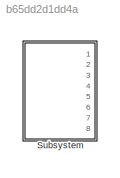
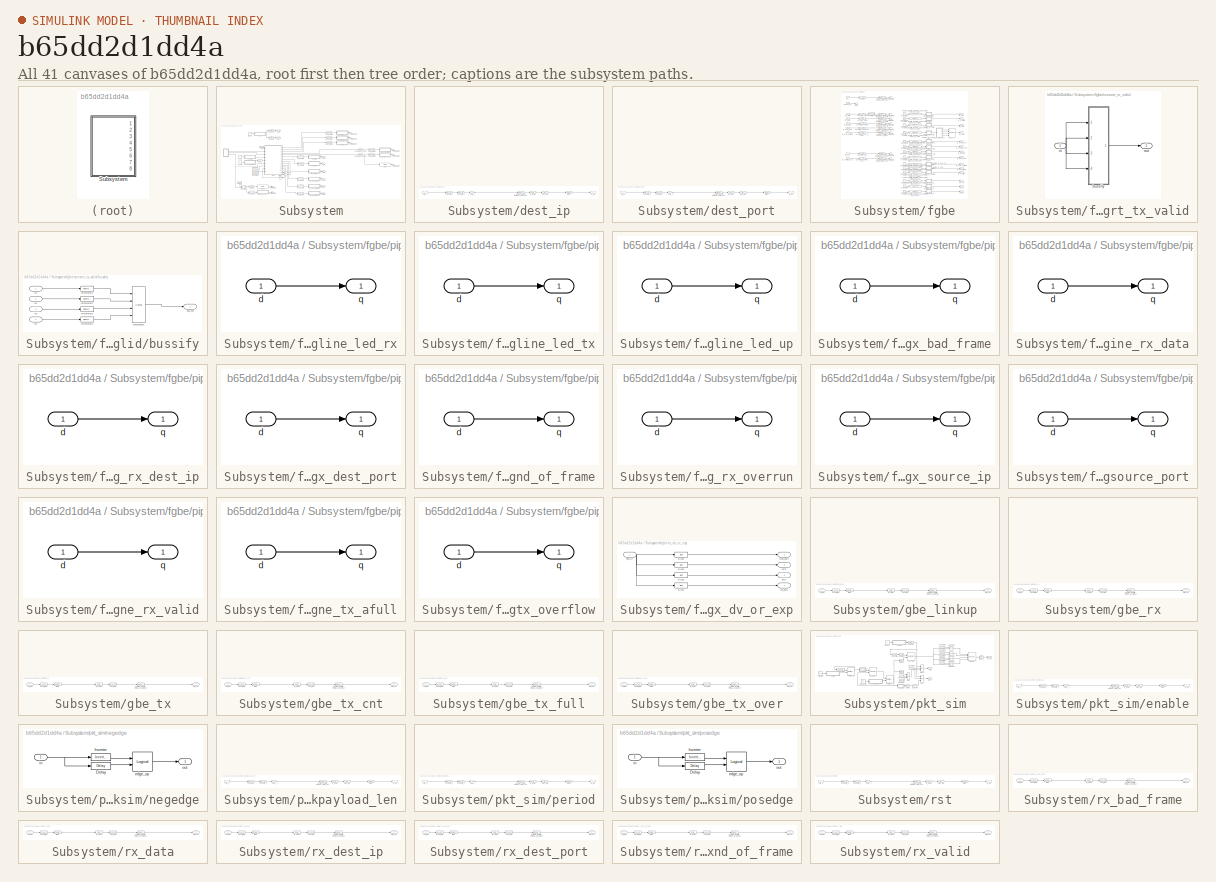
[diagram: thumbnail index - all 41 canvases of the model, root first then tree order]
MODEL slx_b65dd2d1dd4a
KIND model
CONFIG AbsTol = auto
CONFIG EnableMultiTasking = off
CONFIG FixedStep = auto
CONFIG MaxStep = auto
CONFIG MinStep = auto
CONFIG RelTol = 1e-3
CONFIG SampleTimeConstraint = Unconstrained
CONFIG Solver = VariableStepDiscrete
CONFIG SolverName = VariableStepDiscrete
CONFIG StartTime = 0.0
CONFIG StopTime = 50000
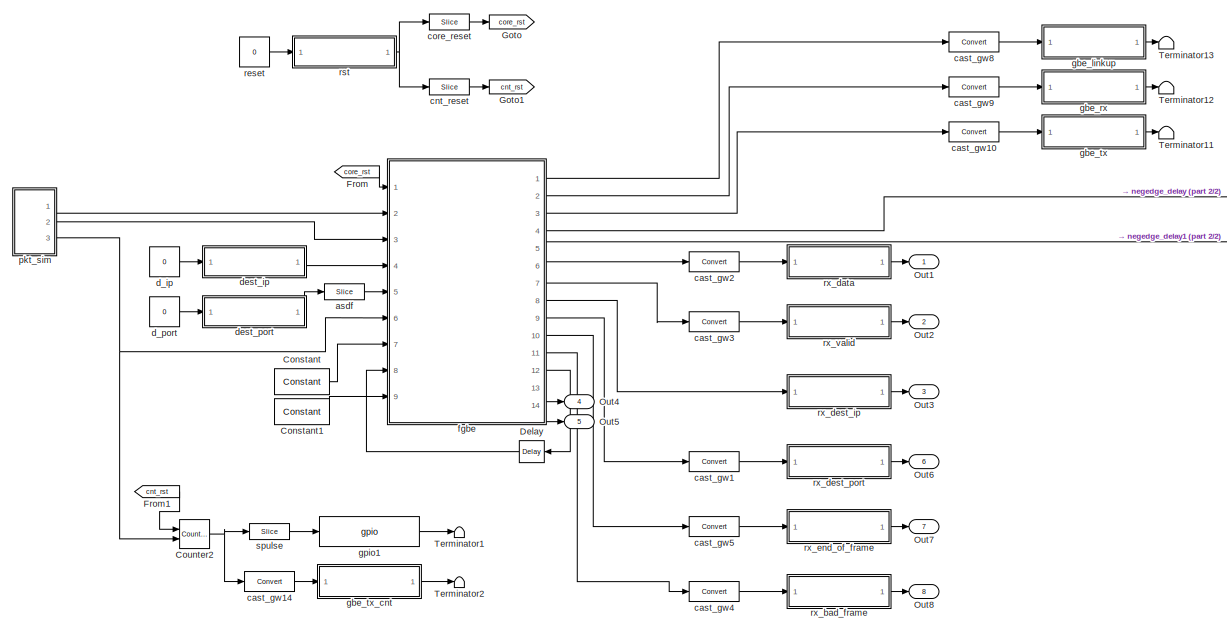
[diagram: Subsystem - part 1/2, most of the canvas]
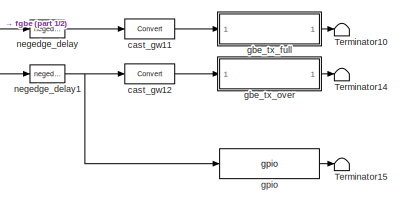
[diagram: Subsystem - part 2/2, middle right region]
BLOCK [SubSystem] Subsystem
  Ports = [0, 8]
  RequestExecContextInheritance = off
BLOCK [Reference] Subsystem/Constant  REF=xbsIndex_r4/Constant
  Ports = [0, 1]
  SourceBlock = xbsIndex_r4/Constant
  SourceType = Xilinx Constant Block Block
BLOCK [Reference] Subsystem/Constant1  REF=xbsIndex_r4/Constant
  Ports = [0, 1]
  SourceBlock = xbsIndex_r4/Constant
  SourceType = Xilinx Constant Block Block
BLOCK [Reference] Subsystem/Counter2  REF=xbsIndex_r4/Counter
  Ports = [2, 1]
  SourceBlock = xbsIndex_r4/Counter
  SourceType = Xilinx Counter Block
BLOCK [Reference] Subsystem/Delay  REF=xbsIndex_r4/Delay
  Ports = [1, 1]
  SourceBlock = xbsIndex_r4/Delay
  SourceType = Xilinx Delay Block
BLOCK [From] Subsystem/From
  GotoTag = core_rst
BLOCK [From] Subsystem/From1
  GotoTag = cnt_rst
BLOCK [Goto] Subsystem/Goto
  GotoTag = core_rst
BLOCK [Goto] Subsystem/Goto1
  GotoTag = cnt_rst
BLOCK [Outport] Subsystem/Out1
  IconDisplay = Port number
BLOCK [Outport] Subsystem/Out2
  IconDisplay = Port number
  Port = 2
BLOCK [Outport] Subsystem/Out3
  IconDisplay = Port number
  Port = 3
BLOCK [Outport] Subsystem/Out4
  IconDisplay = Port number
  Port = 4
BLOCK [Outport] Subsystem/Out5
  IconDisplay = Port number
  Port = 5
BLOCK [Outport] Subsystem/Out6
  IconDisplay = Port number
  Port = 6
BLOCK [Outport] Subsystem/Out7
  IconDisplay = Port number
  Port = 7
BLOCK [Outport] Subsystem/Out8
  IconDisplay = Port number
  Port = 8
BLOCK [Terminator] Subsystem/Terminator1
BLOCK [Terminator] Subsystem/Terminator10
BLOCK [Terminator] Subsystem/Terminator11
BLOCK [Terminator] Subsystem/Terminator12
BLOCK [Terminator] Subsystem/Terminator13
BLOCK [Terminator] Subsystem/Terminator14
BLOCK [Terminator] Subsystem/Terminator15
BLOCK [Terminator] Subsystem/Terminator2
BLOCK [Reference] Subsystem/asdf  REF=xbsIndex_r4/Slice
  Ports = [1, 1]
  SourceBlock = xbsIndex_r4/Slice
  SourceType = Xilinx Bit Slice Extractor Block
BLOCK [Reference] Subsystem/cast_gw1  REF=xbsIndex_r4/Convert
  Ports = [1, 1]
  SourceBlock = xbsIndex_r4/Convert
  SourceType = Xilinx Type Converter Block
BLOCK [Reference] Subsystem/cast_gw10  REF=xbsIndex_r4/Convert
  Ports = [1, 1]
  SourceBlock = xbsIndex_r4/Convert
  SourceType = Xilinx Type Converter Block
BLOCK [Reference] Subsystem/cast_gw11  REF=xbsIndex_r4/Convert
  Ports = [1, 1]
  SourceBlock = xbsIndex_r4/Convert
  SourceType = Xilinx Type Converter Block
BLOCK [Reference] Subsystem/cast_gw12  REF=xbsIndex_r4/Convert
  Ports = [1, 1]
  SourceBlock = xbsIndex_r4/Convert
  SourceType = Xilinx Type Converter Block
BLOCK [Reference] Subsystem/cast_gw14  REF=xbsIndex_r4/Convert
  Ports = [1, 1]
  SourceBlock = xbsIndex_r4/Convert
  SourceType = Xilinx Type Converter Block
BLOCK [Reference] Subsystem/cast_gw2  REF=xbsIndex_r4/Convert
  Ports = [1, 1]
  SourceBlock = xbsIndex_r4/Convert
  SourceType = Xilinx Type Converter Block
BLOCK [Reference] Subsystem/cast_gw3  REF=xbsIndex_r4/Convert
  Ports = [1, 1]
  SourceBlock = xbsIndex_r4/Convert
  SourceType = Xilinx Type Converter Block
BLOCK [Reference] Subsystem/cast_gw4  REF=xbsIndex_r4/Convert
  Ports = [1, 1]
  SourceBlock = xbsIndex_r4/Convert
  SourceType = Xilinx Type Converter Block
BLOCK [Reference] Subsystem/cast_gw5  REF=xbsIndex_r4/Convert
  Ports = [1, 1]
  SourceBlock = xbsIndex_r4/Convert
  SourceType = Xilinx Type Converter Block
BLOCK [Reference] Subsystem/cast_gw8  REF=xbsIndex_r4/Convert
  Ports = [1, 1]
  SourceBlock = xbsIndex_r4/Convert
  SourceType = Xilinx Type Converter Block
BLOCK [Reference] Subsystem/cast_gw9  REF=xbsIndex_r4/Convert
  Ports = [1, 1]
  SourceBlock = xbsIndex_r4/Convert
  SourceType = Xilinx Type Converter Block
BLOCK [Reference] Subsystem/cnt_reset  REF=xbsIndex_r4/Slice
  Ports = [1, 1]
  SourceBlock = xbsIndex_r4/Slice
  SourceType = Xilinx Bit Slice Extractor Block
BLOCK [Reference] Subsystem/core_reset  REF=xbsIndex_r4/Slice
  Ports = [1, 1]
  SourceBlock = xbsIndex_r4/Slice
  SourceType = Xilinx Bit Slice Extractor Block
BLOCK [Constant] Subsystem/d_ip
  Value = 0
BLOCK [Constant] Subsystem/d_port
  Value = 0
BLOCK [SubSystem] Subsystem/dest_ip
  AncestorBlock = xps_library/Memory/software_register
  AttributesFormatString = 1input:uf32.0 = 32 bits
  Ports = [1, 1]
  RequestExecContextInheritance = off
  Tag = xps:sw_reg
BLOCK [DataTypeConversion] Subsystem/dest_ip/convert1_1
  LockScale = on
  OutDataTypeStr = fixdt('ufix32_En0')
  RndMeth = Floor
  SaturateOnIntegerOverflow = off
BLOCK [DataTypeConversion] Subsystem/dest_ip/convert2_1
  ConvertRealWorld = Stored Integer (SI)
  LockScale = on
  OutDataTypeStr = fixdt('ufix32_En0')
  RndMeth = Floor
  SaturateOnIntegerOverflow = off
BLOCK [Gain] Subsystem/dest_ip/gain_1
  OutDataTypeStr = Inherit: Inherit via internal rule
  ParamDataTypeStr = Inherit: Inherit via internal rule
  SaturateOnIntegerOverflow = off
BLOCK [Outport] Subsystem/dest_ip/in_reg
  IconDisplay = Port number
BLOCK [Reference] Subsystem/dest_ip/io_delay  REF=xbsIndex_r4/Delay
  Ports = [1, 1]
  SourceBlock = xbsIndex_r4/Delay
  SourceType = Xilinx Delay Block
BLOCK [Reference] Subsystem/dest_ip/reint1  REF=xbsIndex_r4/Reinterpret
  Ports = [1, 1]
  SourceBlock = xbsIndex_r4/Reinterpret
  SourceType = Xilinx Type Reinterpreter Block
BLOCK [Inport] Subsystem/dest_ip/sim_1
  IconDisplay = Port number
BLOCK [Reference] Subsystem/dest_ip/skarab_tut_intro_template_Subsystem_dest_ip_user_data_out  REF=xbsIndex_r4/Gateway In
  Ports = [1, 1]
  SourceBlock = xbsIndex_r4/Gateway In
  SourceType = Xilinx Gateway In Block
BLOCK [Reference] Subsystem/dest_ip/slice_reg  REF=xbsIndex_r4/Slice
  Ports = [1, 1]
  SourceBlock = xbsIndex_r4/Slice
  SourceType = Xilinx Bit Slice Extractor Block
BLOCK [SubSystem] Subsystem/dest_port
  AncestorBlock = xps_library/Memory/software_register
  AttributesFormatString = 1input:uf32.0 = 32 bits
  Ports = [1, 1]
  RequestExecContextInheritance = off
  Tag = xps:sw_reg
BLOCK [DataTypeConversion] Subsystem/dest_port/convert1_1
  LockScale = on
  OutDataTypeStr = fixdt('ufix32_En0')
  RndMeth = Floor
  SaturateOnIntegerOverflow = off
BLOCK [DataTypeConversion] Subsystem/dest_port/convert2_1
  ConvertRealWorld = Stored Integer (SI)
  LockScale = on
  OutDataTypeStr = fixdt('ufix32_En0')
  RndMeth = Floor
  SaturateOnIntegerOverflow = off
BLOCK [Gain] Subsystem/dest_port/gain_1
  OutDataTypeStr = Inherit: Inherit via internal rule
  ParamDataTypeStr = Inherit: Inherit via internal rule
  SaturateOnIntegerOverflow = off
BLOCK [Outport] Subsystem/dest_port/in_reg
  IconDisplay = Port number
BLOCK [Reference] Subsystem/dest_port/io_delay  REF=xbsIndex_r4/Delay
  Ports = [1, 1]
  SourceBlock = xbsIndex_r4/Delay
  SourceType = Xilinx Delay Block
BLOCK [Reference] Subsystem/dest_port/reint1  REF=xbsIndex_r4/Reinterpret
  Ports = [1, 1]
  SourceBlock = xbsIndex_r4/Reinterpret
  SourceType = Xilinx Type Reinterpreter Block
BLOCK [Inport] Subsystem/dest_port/sim_1
  IconDisplay = Port number
BLOCK [Reference] Subsystem/dest_port/skarab_tut_intro_template_Subsystem_dest_port_user_data_out  REF=xbsIndex_r4/Gateway In
  Ports = [1, 1]
  SourceBlock = xbsIndex_r4/Gateway In
  SourceType = Xilinx Gateway In Block
BLOCK [Reference] Subsystem/dest_port/slice_reg  REF=xbsIndex_r4/Slice
  Ports = [1, 1]
  SourceBlock = xbsIndex_r4/Slice
  SourceType = Xilinx Bit Slice Extractor Block
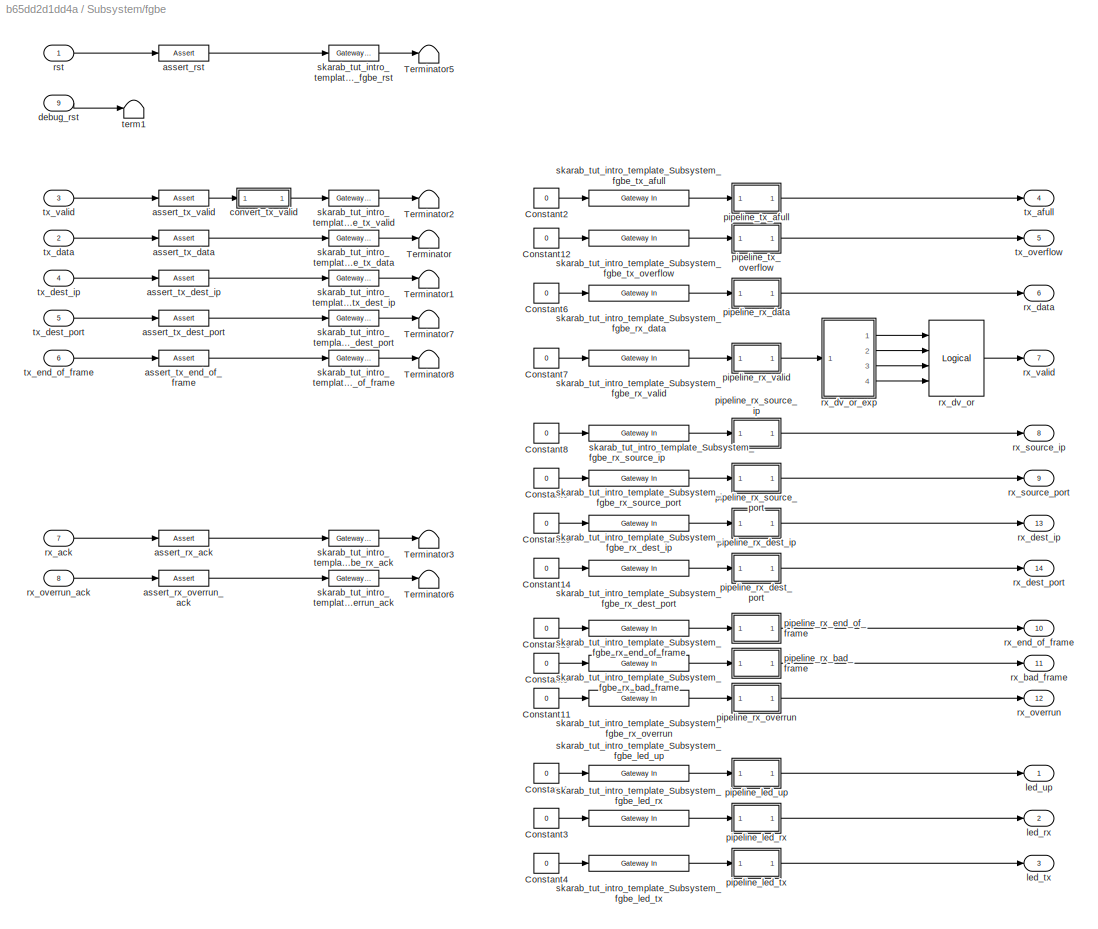
BLOCK [SubSystem] Subsystem/fgbe
  AncestorBlock = xps_library/IO/forty_gbe
  AttributesFormatString = incoming_latency=0
  Ports = [9, 14]
  RequestExecContextInheritance = off
  Tag = xps:forty_gbe
BLOCK [Constant] Subsystem/fgbe/Constant1
  Value = 0
BLOCK [Constant] Subsystem/fgbe/Constant10
  Value = 0
BLOCK [Constant] Subsystem/fgbe/Constant11
  Value = 0
BLOCK [Constant] Subsystem/fgbe/Constant12
  Value = 0
BLOCK [Constant] Subsystem/fgbe/Constant13
  Value = 0
BLOCK [Constant] Subsystem/fgbe/Constant14
  Value = 0
BLOCK [Constant] Subsystem/fgbe/Constant2
  Value = 0
BLOCK [Constant] Subsystem/fgbe/Constant3
  Value = 0
BLOCK [Constant] Subsystem/fgbe/Constant4
  Value = 0
BLOCK [Constant] Subsystem/fgbe/Constant5
  Value = 0
BLOCK [Constant] Subsystem/fgbe/Constant6
  Value = 0
BLOCK [Constant] Subsystem/fgbe/Constant7
  Value = 0
BLOCK [Constant] Subsystem/fgbe/Constant8
  Value = 0
BLOCK [Constant] Subsystem/fgbe/Constant9
  Value = 0
BLOCK [Terminator] Subsystem/fgbe/Terminator
BLOCK [Terminator] Subsystem/fgbe/Terminator1
BLOCK [Terminator] Subsystem/fgbe/Terminator2
BLOCK [Terminator] Subsystem/fgbe/Terminator3
BLOCK [Terminator] Subsystem/fgbe/Terminator5
BLOCK [Terminator] Subsystem/fgbe/Terminator6
BLOCK [Terminator] Subsystem/fgbe/Terminator7
BLOCK [Terminator] Subsystem/fgbe/Terminator8
BLOCK [Reference] Subsystem/fgbe/assert_rst  REF=xbsIndex_r4/Assert
  Ports = [1, 1]
  SourceBlock = xbsIndex_r4/Assert
  SourceType = Xilinx Assert Block
BLOCK [Reference] Subsystem/fgbe/assert_rx_ack  REF=xbsIndex_r4/Assert
  Ports = [1, 1]
  SourceBlock = xbsIndex_r4/Assert
  SourceType = Xilinx Assert Block
BLOCK [Reference] Subsystem/fgbe/assert_rx_overrun_ack  REF=xbsIndex_r4/Assert
  Ports = [1, 1]
  SourceBlock = xbsIndex_r4/Assert
  SourceType = Xilinx Assert Block
BLOCK [Reference] Subsystem/fgbe/assert_tx_data  REF=xbsIndex_r4/Assert
  Ports = [1, 1]
  SourceBlock = xbsIndex_r4/Assert
  SourceType = Xilinx Assert Block
BLOCK [Reference] Subsystem/fgbe/assert_tx_dest_ip  REF=xbsIndex_r4/Assert
  Ports = [1, 1]
  SourceBlock = xbsIndex_r4/Assert
  SourceType = Xilinx Assert Block
BLOCK [Reference] Subsystem/fgbe/assert_tx_dest_port  REF=xbsIndex_r4/Assert
  Ports = [1, 1]
  SourceBlock = xbsIndex_r4/Assert
  SourceType = Xilinx Assert Block
BLOCK [Reference] Subsystem/fgbe/assert_tx_end_of_frame  REF=xbsIndex_r4/Assert
  Ports = [1, 1]
  SourceBlock = xbsIndex_r4/Assert
  SourceType = Xilinx Assert Block
BLOCK [Reference] Subsystem/fgbe/assert_tx_valid  REF=xbsIndex_r4/Assert
  Ports = [1, 1]
  SourceBlock = xbsIndex_r4/Assert
  SourceType = Xilinx Assert Block
BLOCK [SubSystem] Subsystem/fgbe/convert_tx_valid
  AncestorBlock = casper_library_bus/bus_replicate
  Ports = [1, 1]
  RequestExecContextInheritance = off
  UserDataPersistent = on
BLOCK [SubSystem] Subsystem/fgbe/convert_tx_valid/bussify
  AncestorBlock = casper_library_flow_control/bus_create
  Ports = [4, 1]
  RequestExecContextInheritance = off
  UserDataPersistent = on
BLOCK [Outport] Subsystem/fgbe/convert_tx_valid/bussify/bus_out
  IconDisplay = Port number
BLOCK [Reference] Subsystem/fgbe/convert_tx_valid/bussify/concatenate  REF=xbsIndex_r4/Concat
  Ports = [4, 1]
  SourceBlock = xbsIndex_r4/Concat
  SourceType = Xilinx Bus Concatenator Block
BLOCK [Inport] Subsystem/fgbe/convert_tx_valid/bussify/in1
  IconDisplay = Port number
BLOCK [Inport] Subsystem/fgbe/convert_tx_valid/bussify/in2
  IconDisplay = Port number
  Port = 2
BLOCK [Inport] Subsystem/fgbe/convert_tx_valid/bussify/in3
  IconDisplay = Port number
  Port = 3
BLOCK [Inport] Subsystem/fgbe/convert_tx_valid/bussify/in4
  IconDisplay = Port number
  Port = 4
BLOCK [Reference] Subsystem/fgbe/convert_tx_valid/bussify/reinterpret1  REF=xbsIndex_r4/Reinterpret
  Ports = [1, 1]
  SourceBlock = xbsIndex_r4/Reinterpret
  SourceType = Xilinx Type Reinterpreter Block
BLOCK [Reference] Subsystem/fgbe/convert_tx_valid/bussify/reinterpret2  REF=xbsIndex_r4/Reinterpret
  Ports = [1, 1]
  SourceBlock = xbsIndex_r4/Reinterpret
  SourceType = Xilinx Type Reinterpreter Block
BLOCK [Reference] Subsystem/fgbe/convert_tx_valid/bussify/reinterpret3  REF=xbsIndex_r4/Reinterpret
  Ports = [1, 1]
  SourceBlock = xbsIndex_r4/Reinterpret
  SourceType = Xilinx Type Reinterpreter Block
BLOCK [Reference] Subsystem/fgbe/convert_tx_valid/bussify/reinterpret4  REF=xbsIndex_r4/Reinterpret
  Ports = [1, 1]
  SourceBlock = xbsIndex_r4/Reinterpret
  SourceType = Xilinx Type Reinterpreter Block
BLOCK [Inport] Subsystem/fgbe/convert_tx_valid/in
  IconDisplay = Port number
BLOCK [Outport] Subsystem/fgbe/convert_tx_valid/out
  IconDisplay = Port number
BLOCK [Inport] Subsystem/fgbe/debug_rst
  IconDisplay = Port number
  Port = 9
BLOCK [Outport] Subsystem/fgbe/led_rx
  IconDisplay = Port number
  Port = 2
BLOCK [Outport] Subsystem/fgbe/led_tx
  IconDisplay = Port number
  Port = 3
BLOCK [Outport] Subsystem/fgbe/led_up
  IconDisplay = Port number
BLOCK [SubSystem] Subsystem/fgbe/pipeline_led_rx
  AncestorBlock = casper_library_delays/pipeline
  AttributesFormatString = Latency = %<latency>
  Ports = [1, 1]
  RequestExecContextInheritance = off
  UserDataPersistent = on
BLOCK [Inport] Subsystem/fgbe/pipeline_led_rx/d
  IconDisplay = Port number
BLOCK [Outport] Subsystem/fgbe/pipeline_led_rx/q
  IconDisplay = Port number
BLOCK [SubSystem] Subsystem/fgbe/pipeline_led_tx
  AncestorBlock = casper_library_delays/pipeline
  AttributesFormatString = Latency = %<latency>
  Ports = [1, 1]
  RequestExecContextInheritance = off
  UserDataPersistent = on
BLOCK [Inport] Subsystem/fgbe/pipeline_led_tx/d
  IconDisplay = Port number
BLOCK [Outport] Subsystem/fgbe/pipeline_led_tx/q
  IconDisplay = Port number
BLOCK [SubSystem] Subsystem/fgbe/pipeline_led_up
  AncestorBlock = casper_library_delays/pipeline
  AttributesFormatString = Latency = %<latency>
  Ports = [1, 1]
  RequestExecContextInheritance = off
  UserDataPersistent = on
BLOCK [Inport] Subsystem/fgbe/pipeline_led_up/d
  IconDisplay = Port number
BLOCK [Outport] Subsystem/fgbe/pipeline_led_up/q
  IconDisplay = Port number
BLOCK [SubSystem] Subsystem/fgbe/pipeline_rx_bad_frame
  AncestorBlock = casper_library_delays/pipeline
  AttributesFormatString = Latency = %<latency>
  Ports = [1, 1]
  RequestExecContextInheritance = off
  UserDataPersistent = on
BLOCK [Inport] Subsystem/fgbe/pipeline_rx_bad_frame/d
  IconDisplay = Port number
BLOCK [Outport] Subsystem/fgbe/pipeline_rx_bad_frame/q
  IconDisplay = Port number
BLOCK [SubSystem] Subsystem/fgbe/pipeline_rx_data
  AncestorBlock = casper_library_delays/pipeline
  AttributesFormatString = Latency = %<latency>
  Ports = [1, 1]
  RequestExecContextInheritance = off
  UserDataPersistent = on
BLOCK [Inport] Subsystem/fgbe/pipeline_rx_data/d
  IconDisplay = Port number
BLOCK [Outport] Subsystem/fgbe/pipeline_rx_data/q
  IconDisplay = Port number
BLOCK [SubSystem] Subsystem/fgbe/pipeline_rx_dest_ip
  AncestorBlock = casper_library_delays/pipeline
  AttributesFormatString = Latency = %<latency>
  Ports = [1, 1]
  RequestExecContextInheritance = off
  UserDataPersistent = on
BLOCK [Inport] Subsystem/fgbe/pipeline_rx_dest_ip/d
  IconDisplay = Port number
BLOCK [Outport] Subsystem/fgbe/pipeline_rx_dest_ip/q
  IconDisplay = Port number
BLOCK [SubSystem] Subsystem/fgbe/pipeline_rx_dest_port
  AncestorBlock = casper_library_delays/pipeline
  AttributesFormatString = Latency = %<latency>
  Ports = [1, 1]
  RequestExecContextInheritance = off
  UserDataPersistent = on
BLOCK [Inport] Subsystem/fgbe/pipeline_rx_dest_port/d
  IconDisplay = Port number
BLOCK [Outport] Subsystem/fgbe/pipeline_rx_dest_port/q
  IconDisplay = Port number
BLOCK [SubSystem] Subsystem/fgbe/pipeline_rx_end_of_frame
  AncestorBlock = casper_library_delays/pipeline
  AttributesFormatString = Latency = %<latency>
  Ports = [1, 1]
  RequestExecContextInheritance = off
  UserDataPersistent = on
BLOCK [Inport] Subsystem/fgbe/pipeline_rx_end_of_frame/d
  IconDisplay = Port number
BLOCK [Outport] Subsystem/fgbe/pipeline_rx_end_of_frame/q
  IconDisplay = Port number
BLOCK [SubSystem] Subsystem/fgbe/pipeline_rx_overrun
  AncestorBlock = casper_library_delays/pipeline
  AttributesFormatString = Latency = %<latency>
  Ports = [1, 1]
  RequestExecContextInheritance = off
  UserDataPersistent = on
BLOCK [Inport] Subsystem/fgbe/pipeline_rx_overrun/d
  IconDisplay = Port number
BLOCK [Outport] Subsystem/fgbe/pipeline_rx_overrun/q
  IconDisplay = Port number
BLOCK [SubSystem] Subsystem/fgbe/pipeline_rx_source_ip
  AncestorBlock = casper_library_delays/pipeline
  AttributesFormatString = Latency = %<latency>
  Ports = [1, 1]
  RequestExecContextInheritance = off
  UserDataPersistent = on
BLOCK [Inport] Subsystem/fgbe/pipeline_rx_source_ip/d
  IconDisplay = Port number
BLOCK [Outport] Subsystem/fgbe/pipeline_rx_source_ip/q
  IconDisplay = Port number
BLOCK [SubSystem] Subsystem/fgbe/pipeline_rx_source_port
  AncestorBlock = casper_library_delays/pipeline
  AttributesFormatString = Latency = %<latency>
  Ports = [1, 1]
  RequestExecContextInheritance = off
  UserDataPersistent = on
BLOCK [Inport] Subsystem/fgbe/pipeline_rx_source_port/d
  IconDisplay = Port number
BLOCK [Outport] Subsystem/fgbe/pipeline_rx_source_port/q
  IconDisplay = Port number
BLOCK [SubSystem] Subsystem/fgbe/pipeline_rx_valid
  AncestorBlock = casper_library_delays/pipeline
  AttributesFormatString = Latency = %<latency>
  Ports = [1, 1]
  RequestExecContextInheritance = off
  UserDataPersistent = on
BLOCK [Inport] Subsystem/fgbe/pipeline_rx_valid/d
  IconDisplay = Port number
BLOCK [Outport] Subsystem/fgbe/pipeline_rx_valid/q
  IconDisplay = Port number
BLOCK [SubSystem] Subsystem/fgbe/pipeline_tx_afull
  AncestorBlock = casper_library_delays/pipeline
  AttributesFormatString = Latency = %<latency>
  Ports = [1, 1]
  RequestExecContextInheritance = off
  UserDataPersistent = on
BLOCK [Inport] Subsystem/fgbe/pipeline_tx_afull/d
  IconDisplay = Port number
BLOCK [Outport] Subsystem/fgbe/pipeline_tx_afull/q
  IconDisplay = Port number
BLOCK [SubSystem] Subsystem/fgbe/pipeline_tx_overflow
  AncestorBlock = casper_library_delays/pipeline
  AttributesFormatString = Latency = %<latency>
  Ports = [1, 1]
  RequestExecContextInheritance = off
  UserDataPersistent = on
BLOCK [Inport] Subsystem/fgbe/pipeline_tx_overflow/d
  IconDisplay = Port number
BLOCK [Outport] Subsystem/fgbe/pipeline_tx_overflow/q
  IconDisplay = Port number
BLOCK [Inport] Subsystem/fgbe/rst
  IconDisplay = Port number
BLOCK [Inport] Subsystem/fgbe/rx_ack
  IconDisplay = Port number
  Port = 7
BLOCK [Outport] Subsystem/fgbe/rx_bad_frame
  IconDisplay = Port number
  Port = 11
BLOCK [Outport] Subsystem/fgbe/rx_data
  IconDisplay = Port number
  Port = 6
BLOCK [Outport] Subsystem/fgbe/rx_dest_ip
  IconDisplay = Port number
  Port = 13
BLOCK [Outport] Subsystem/fgbe/rx_dest_port
  IconDisplay = Port number
  Port = 14
BLOCK [Reference] Subsystem/fgbe/rx_dv_or  REF=xbsIndex_r4/Logical
  Ports = [4, 1]
  SourceBlock = xbsIndex_r4/Logical
  SourceType = Xilinx Logical Block Block
BLOCK [SubSystem] Subsystem/fgbe/rx_dv_or_exp
  AncestorBlock = casper_library_flow_control/bus_expand
  AttributesFormatString = 4 outputs
  Ports = [1, 4]
  RequestExecContextInheritance = off
  UserDataPersistent = on
BLOCK [Inport] Subsystem/fgbe/rx_dv_or_exp/bus_in
  IconDisplay = Port number
BLOCK [Outport] Subsystem/fgbe/rx_dv_or_exp/lsb_out1
  IconDisplay = Port number
  Port = 4
BLOCK [Outport] Subsystem/fgbe/rx_dv_or_exp/msb_out4
  IconDisplay = Port number
BLOCK [Outport] Subsystem/fgbe/rx_dv_or_exp/out2
  IconDisplay = Port number
  Port = 3
BLOCK [Outport] Subsystem/fgbe/rx_dv_or_exp/out3
  IconDisplay = Port number
  Port = 2
BLOCK [Reference] Subsystem/fgbe/rx_dv_or_exp/slice1  REF=xbsIndex_r4/Slice
  Ports = [1, 1]
  SourceBlock = xbsIndex_r4/Slice
  SourceType = Xilinx Bit Slice Extractor Block
BLOCK [Reference] Subsystem/fgbe/rx_dv_or_exp/slice2  REF=xbsIndex_r4/Slice
  Ports = [1, 1]
  SourceBlock = xbsIndex_r4/Slice
  SourceType = Xilinx Bit Slice Extractor Block
BLOCK [Reference] Subsystem/fgbe/rx_dv_or_exp/slice3  REF=xbsIndex_r4/Slice
  Ports = [1, 1]
  SourceBlock = xbsIndex_r4/Slice
  SourceType = Xilinx Bit Slice Extractor Block
BLOCK [Reference] Subsystem/fgbe/rx_dv_or_exp/slice4  REF=xbsIndex_r4/Slice
  Ports = [1, 1]
  SourceBlock = xbsIndex_r4/Slice
  SourceType = Xilinx Bit Slice Extractor Block
BLOCK [Outport] Subsystem/fgbe/rx_end_of_frame
  IconDisplay = Port number
  Port = 10
BLOCK [Outport] Subsystem/fgbe/rx_overrun
  IconDisplay = Port number
  Port = 12
BLOCK [Inport] Subsystem/fgbe/rx_overrun_ack
  IconDisplay = Port number
  Port = 8
BLOCK [Outport] Subsystem/fgbe/rx_source_ip
  IconDisplay = Port number
  Port = 8
BLOCK [Outport] Subsystem/fgbe/rx_source_port
  IconDisplay = Port number
  Port = 9
BLOCK [Outport] Subsystem/fgbe/rx_valid
  IconDisplay = Port number
  Port = 7
BLOCK [Reference] Subsystem/fgbe/skarab_tut_intro_template_Subsystem_fgbe_led_rx  REF=xbsIndex_r4/Gateway In
  Ports = [1, 1]
  SourceBlock = xbsIndex_r4/Gateway In
  SourceType = Xilinx Gateway In Block
BLOCK [Reference] Subsystem/fgbe/skarab_tut_intro_template_Subsystem_fgbe_led_tx  REF=xbsIndex_r4/Gateway In
  Ports = [1, 1]
  SourceBlock = xbsIndex_r4/Gateway In
  SourceType = Xilinx Gateway In Block
BLOCK [Reference] Subsystem/fgbe/skarab_tut_intro_template_Subsystem_fgbe_led_up  REF=xbsIndex_r4/Gateway In
  Ports = [1, 1]
  SourceBlock = xbsIndex_r4/Gateway In
  SourceType = Xilinx Gateway In Block
BLOCK [Reference] Subsystem/fgbe/skarab_tut_intro_template_Subsystem_fgbe_rst  REF=xbsIndex_r4/Gateway Out
  Ports = [1, 1]
  SourceBlock = xbsIndex_r4/Gateway Out
  SourceType = Xilinx Gateway Out Block
BLOCK [Reference] Subsystem/fgbe/skarab_tut_intro_template_Subsystem_fgbe_rx_ack  REF=xbsIndex_r4/Gateway Out
  Ports = [1, 1]
  SourceBlock = xbsIndex_r4/Gateway Out
  SourceType = Xilinx Gateway Out Block
BLOCK [Reference] Subsystem/fgbe/skarab_tut_intro_template_Subsystem_fgbe_rx_bad_frame  REF=xbsIndex_r4/Gateway In
  Ports = [1, 1]
  SourceBlock = xbsIndex_r4/Gateway In
  SourceType = Xilinx Gateway In Block
BLOCK [Reference] Subsystem/fgbe/skarab_tut_intro_template_Subsystem_fgbe_rx_data  REF=xbsIndex_r4/Gateway In
  Ports = [1, 1]
  SourceBlock = xbsIndex_r4/Gateway In
  SourceType = Xilinx Gateway In Block
BLOCK [Reference] Subsystem/fgbe/skarab_tut_intro_template_Subsystem_fgbe_rx_dest_ip  REF=xbsIndex_r4/Gateway In
  Ports = [1, 1]
  SourceBlock = xbsIndex_r4/Gateway In
  SourceType = Xilinx Gateway In Block
BLOCK [Reference] Subsystem/fgbe/skarab_tut_intro_template_Subsystem_fgbe_rx_dest_port  REF=xbsIndex_r4/Gateway In
  Ports = [1, 1]
  SourceBlock = xbsIndex_r4/Gateway In
  SourceType = Xilinx Gateway In Block
BLOCK [Reference] Subsystem/fgbe/skarab_tut_intro_template_Subsystem_fgbe_rx_end_of_frame  REF=xbsIndex_r4/Gateway In
  Ports = [1, 1]
  SourceBlock = xbsIndex_r4/Gateway In
  SourceType = Xilinx Gateway In Block
BLOCK [Reference] Subsystem/fgbe/skarab_tut_intro_template_Subsystem_fgbe_rx_overrun  REF=xbsIndex_r4/Gateway In
  Ports = [1, 1]
  SourceBlock = xbsIndex_r4/Gateway In
  SourceType = Xilinx Gateway In Block
BLOCK [Reference] Subsystem/fgbe/skarab_tut_intro_template_Subsystem_fgbe_rx_overrun_ack  REF=xbsIndex_r4/Gateway Out
  Ports = [1, 1]
  SourceBlock = xbsIndex_r4/Gateway Out
  SourceType = Xilinx Gateway Out Block
BLOCK [Reference] Subsystem/fgbe/skarab_tut_intro_template_Subsystem_fgbe_rx_source_ip  REF=xbsIndex_r4/Gateway In
  Ports = [1, 1]
  SourceBlock = xbsIndex_r4/Gateway In
  SourceType = Xilinx Gateway In Block
BLOCK [Reference] Subsystem/fgbe/skarab_tut_intro_template_Subsystem_fgbe_rx_source_port  REF=xbsIndex_r4/Gateway In
  Ports = [1, 1]
  SourceBlock = xbsIndex_r4/Gateway In
  SourceType = Xilinx Gateway In Block
BLOCK [Reference] Subsystem/fgbe/skarab_tut_intro_template_Subsystem_fgbe_rx_valid  REF=xbsIndex_r4/Gateway In
  Ports = [1, 1]
  SourceBlock = xbsIndex_r4/Gateway In
  SourceType = Xilinx Gateway In Block
BLOCK [Reference] Subsystem/fgbe/skarab_tut_intro_template_Subsystem_fgbe_tx_afull  REF=xbsIndex_r4/Gateway In
  Ports = [1, 1]
  SourceBlock = xbsIndex_r4/Gateway In
  SourceType = Xilinx Gateway In Block
BLOCK [Reference] Subsystem/fgbe/skarab_tut_intro_template_Subsystem_fgbe_tx_data  REF=xbsIndex_r4/Gateway Out
  Ports = [1, 1]
  SourceBlock = xbsIndex_r4/Gateway Out
  SourceType = Xilinx Gateway Out Block
BLOCK [Reference] Subsystem/fgbe/skarab_tut_intro_template_Subsystem_fgbe_tx_dest_ip  REF=xbsIndex_r4/Gateway Out
  Ports = [1, 1]
  SourceBlock = xbsIndex_r4/Gateway Out
  SourceType = Xilinx Gateway Out Block
BLOCK [Reference] Subsystem/fgbe/skarab_tut_intro_template_Subsystem_fgbe_tx_dest_port  REF=xbsIndex_r4/Gateway Out
  Ports = [1, 1]
  SourceBlock = xbsIndex_r4/Gateway Out
  SourceType = Xilinx Gateway Out Block
BLOCK [Reference] Subsystem/fgbe/skarab_tut_intro_template_Subsystem_fgbe_tx_end_of_frame  REF=xbsIndex_r4/Gateway Out
  Ports = [1, 1]
  SourceBlock = xbsIndex_r4/Gateway Out
  SourceType = Xilinx Gateway Out Block
BLOCK [Reference] Subsystem/fgbe/skarab_tut_intro_template_Subsystem_fgbe_tx_overflow  REF=xbsIndex_r4/Gateway In
  Ports = [1, 1]
  SourceBlock = xbsIndex_r4/Gateway In
  SourceType = Xilinx Gateway In Block
BLOCK [Reference] Subsystem/fgbe/skarab_tut_intro_template_Subsystem_fgbe_tx_valid  REF=xbsIndex_r4/Gateway Out
  Ports = [1, 1]
  SourceBlock = xbsIndex_r4/Gateway Out
  SourceType = Xilinx Gateway Out Block
BLOCK [Terminator] Subsystem/fgbe/term1
BLOCK [Outport] Subsystem/fgbe/tx_afull
  IconDisplay = Port number
  Port = 4
BLOCK [Inport] Subsystem/fgbe/tx_data
  IconDisplay = Port number
  Port = 2
BLOCK [Inport] Subsystem/fgbe/tx_dest_ip
  IconDisplay = Port number
  Port = 4
BLOCK [Inport] Subsystem/fgbe/tx_dest_port
  IconDisplay = Port number
  Port = 5
BLOCK [Inport] Subsystem/fgbe/tx_end_of_frame
  IconDisplay = Port number
  Port = 6
BLOCK [Outport] Subsystem/fgbe/tx_overflow
  IconDisplay = Port number
  Port = 5
BLOCK [Inport] Subsystem/fgbe/tx_valid
  IconDisplay = Port number
  Port = 3
BLOCK [SubSystem] Subsystem/gbe_linkup
  AncestorBlock = xps_library/Memory/software_register
  AttributesFormatString = 1output:uf32.0 = 32 bits
  Ports = [1, 1]
  RequestExecContextInheritance = off
  Tag = xps:sw_reg
BLOCK [Reference] Subsystem/gbe_linkup/assert_reg  REF=xbsIndex_r4/Assert
  Ports = [1, 1]
  SourceBlock = xbsIndex_r4/Assert
  SourceType = Xilinx Assert Block
BLOCK [Reference] Subsystem/gbe_linkup/cast_gw  REF=xbsIndex_r4/Convert
  Ports = [1, 1]
  SourceBlock = xbsIndex_r4/Convert
  SourceType = Xilinx Type Converter Block
BLOCK [Reference] Subsystem/gbe_linkup/io_delay  REF=xbsIndex_r4/Delay
  Ports = [1, 1]
  SourceBlock = xbsIndex_r4/Delay
  SourceType = Xilinx Delay Block
BLOCK [Inport] Subsystem/gbe_linkup/out_reg
  IconDisplay = Port number
BLOCK [Reference] Subsystem/gbe_linkup/reint1  REF=xbsIndex_r4/Reinterpret
  Ports = [1, 1]
  SourceBlock = xbsIndex_r4/Reinterpret
  SourceType = Xilinx Type Reinterpreter Block
BLOCK [Outport] Subsystem/gbe_linkup/sim_out
  IconDisplay = Port number
BLOCK [Reference] Subsystem/gbe_linkup/skarab_tut_intro_template_Subsystem_gbe_linkup_user_data_in  REF=xbsIndex_r4/Gateway Out
  Ports = [1, 1]
  SourceBlock = xbsIndex_r4/Gateway Out
  SourceType = Xilinx Gateway Out Block
BLOCK [SubSystem] Subsystem/gbe_rx
  AncestorBlock = xps_library/Memory/software_register
  AttributesFormatString = 1output:uf32.0 = 32 bits
  Ports = [1, 1]
  RequestExecContextInheritance = off
  Tag = xps:sw_reg
BLOCK [Reference] Subsystem/gbe_rx/assert_reg  REF=xbsIndex_r4/Assert
  Ports = [1, 1]
  SourceBlock = xbsIndex_r4/Assert
  SourceType = Xilinx Assert Block
BLOCK [Reference] Subsystem/gbe_rx/cast_gw  REF=xbsIndex_r4/Convert
  Ports = [1, 1]
  SourceBlock = xbsIndex_r4/Convert
  SourceType = Xilinx Type Converter Block
BLOCK [Reference] Subsystem/gbe_rx/io_delay  REF=xbsIndex_r4/Delay
  Ports = [1, 1]
  SourceBlock = xbsIndex_r4/Delay
  SourceType = Xilinx Delay Block
BLOCK [Inport] Subsystem/gbe_rx/out_reg
  IconDisplay = Port number
BLOCK [Reference] Subsystem/gbe_rx/reint1  REF=xbsIndex_r4/Reinterpret
  Ports = [1, 1]
  SourceBlock = xbsIndex_r4/Reinterpret
  SourceType = Xilinx Type Reinterpreter Block
BLOCK [Outport] Subsystem/gbe_rx/sim_out
  IconDisplay = Port number
BLOCK [Reference] Subsystem/gbe_rx/skarab_tut_intro_template_Subsystem_gbe_rx_user_data_in  REF=xbsIndex_r4/Gateway Out
  Ports = [1, 1]
  SourceBlock = xbsIndex_r4/Gateway Out
  SourceType = Xilinx Gateway Out Block
BLOCK [SubSystem] Subsystem/gbe_tx
  AncestorBlock = xps_library/Memory/software_register
  AttributesFormatString = 1output:uf32.0 = 32 bits
  Ports = [1, 1]
  RequestExecContextInheritance = off
  Tag = xps:sw_reg
BLOCK [Reference] Subsystem/gbe_tx/assert_reg  REF=xbsIndex_r4/Assert
  Ports = [1, 1]
  SourceBlock = xbsIndex_r4/Assert
  SourceType = Xilinx Assert Block
BLOCK [Reference] Subsystem/gbe_tx/cast_gw  REF=xbsIndex_r4/Convert
  Ports = [1, 1]
  SourceBlock = xbsIndex_r4/Convert
  SourceType = Xilinx Type Converter Block
BLOCK [Reference] Subsystem/gbe_tx/io_delay  REF=xbsIndex_r4/Delay
  Ports = [1, 1]
  SourceBlock = xbsIndex_r4/Delay
  SourceType = Xilinx Delay Block
BLOCK [Inport] Subsystem/gbe_tx/out_reg
  IconDisplay = Port number
BLOCK [Reference] Subsystem/gbe_tx/reint1  REF=xbsIndex_r4/Reinterpret
  Ports = [1, 1]
  SourceBlock = xbsIndex_r4/Reinterpret
  SourceType = Xilinx Type Reinterpreter Block
BLOCK [Outport] Subsystem/gbe_tx/sim_out
  IconDisplay = Port number
BLOCK [Reference] Subsystem/gbe_tx/skarab_tut_intro_template_Subsystem_gbe_tx_user_data_in  REF=xbsIndex_r4/Gateway Out
  Ports = [1, 1]
  SourceBlock = xbsIndex_r4/Gateway Out
  SourceType = Xilinx Gateway Out Block
BLOCK [SubSystem] Subsystem/gbe_tx_cnt
  AncestorBlock = xps_library/Memory/software_register
  AttributesFormatString = 1output:uf32.0 = 32 bits
  Ports = [1, 1]
  RequestExecContextInheritance = off
  Tag = xps:sw_reg
BLOCK [Reference] Subsystem/gbe_tx_cnt/assert_reg  REF=xbsIndex_r4/Assert
  Ports = [1, 1]
  SourceBlock = xbsIndex_r4/Assert
  SourceType = Xilinx Assert Block
BLOCK [Reference] Subsystem/gbe_tx_cnt/cast_gw  REF=xbsIndex_r4/Convert
  Ports = [1, 1]
  SourceBlock = xbsIndex_r4/Convert
  SourceType = Xilinx Type Converter Block
BLOCK [Reference] Subsystem/gbe_tx_cnt/io_delay  REF=xbsIndex_r4/Delay
  Ports = [1, 1]
  SourceBlock = xbsIndex_r4/Delay
  SourceType = Xilinx Delay Block
BLOCK [Inport] Subsystem/gbe_tx_cnt/out_reg
  IconDisplay = Port number
BLOCK [Reference] Subsystem/gbe_tx_cnt/reint1  REF=xbsIndex_r4/Reinterpret
  Ports = [1, 1]
  SourceBlock = xbsIndex_r4/Reinterpret
  SourceType = Xilinx Type Reinterpreter Block
BLOCK [Outport] Subsystem/gbe_tx_cnt/sim_out
  IconDisplay = Port number
BLOCK [Reference] Subsystem/gbe_tx_cnt/skarab_tut_intro_template_Subsystem_gbe_tx_cnt_user_data_in  REF=xbsIndex_r4/Gateway Out
  Ports = [1, 1]
  SourceBlock = xbsIndex_r4/Gateway Out
  SourceType = Xilinx Gateway Out Block
BLOCK [SubSystem] Subsystem/gbe_tx_full
  AncestorBlock = xps_library/Memory/software_register
  AttributesFormatString = 1output:uf32.0 = 32 bits
  Ports = [1, 1]
  RequestExecContextInheritance = off
  Tag = xps:sw_reg
BLOCK [Reference] Subsystem/gbe_tx_full/assert_reg  REF=xbsIndex_r4/Assert
  Ports = [1, 1]
  SourceBlock = xbsIndex_r4/Assert
  SourceType = Xilinx Assert Block
BLOCK [Reference] Subsystem/gbe_tx_full/cast_gw  REF=xbsIndex_r4/Convert
  Ports = [1, 1]
  SourceBlock = xbsIndex_r4/Convert
  SourceType = Xilinx Type Converter Block
BLOCK [Reference] Subsystem/gbe_tx_full/io_delay  REF=xbsIndex_r4/Delay
  Ports = [1, 1]
  SourceBlock = xbsIndex_r4/Delay
  SourceType = Xilinx Delay Block
BLOCK [Inport] Subsystem/gbe_tx_full/out_reg
  IconDisplay = Port number
BLOCK [Reference] Subsystem/gbe_tx_full/reint1  REF=xbsIndex_r4/Reinterpret
  Ports = [1, 1]
  SourceBlock = xbsIndex_r4/Reinterpret
  SourceType = Xilinx Type Reinterpreter Block
BLOCK [Outport] Subsystem/gbe_tx_full/sim_out
  IconDisplay = Port number
BLOCK [Reference] Subsystem/gbe_tx_full/skarab_tut_intro_template_Subsystem_gbe_tx_full_user_data_in  REF=xbsIndex_r4/Gateway Out
  Ports = [1, 1]
  SourceBlock = xbsIndex_r4/Gateway Out
  SourceType = Xilinx Gateway Out Block
BLOCK [SubSystem] Subsystem/gbe_tx_over
  AncestorBlock = xps_library/Memory/software_register
  AttributesFormatString = 1output:uf32.0 = 32 bits
  Ports = [1, 1]
  RequestExecContextInheritance = off
  Tag = xps:sw_reg
BLOCK [Reference] Subsystem/gbe_tx_over/assert_reg  REF=xbsIndex_r4/Assert
  Ports = [1, 1]
  SourceBlock = xbsIndex_r4/Assert
  SourceType = Xilinx Assert Block
BLOCK [Reference] Subsystem/gbe_tx_over/cast_gw  REF=xbsIndex_r4/Convert
  Ports = [1, 1]
  SourceBlock = xbsIndex_r4/Convert
  SourceType = Xilinx Type Converter Block
BLOCK [Reference] Subsystem/gbe_tx_over/io_delay  REF=xbsIndex_r4/Delay
  Ports = [1, 1]
  SourceBlock = xbsIndex_r4/Delay
  SourceType = Xilinx Delay Block
BLOCK [Inport] Subsystem/gbe_tx_over/out_reg
  IconDisplay = Port number
BLOCK [Reference] Subsystem/gbe_tx_over/reint1  REF=xbsIndex_r4/Reinterpret
  Ports = [1, 1]
  SourceBlock = xbsIndex_r4/Reinterpret
  SourceType = Xilinx Type Reinterpreter Block
BLOCK [Outport] Subsystem/gbe_tx_over/sim_out
  IconDisplay = Port number
BLOCK [Reference] Subsystem/gbe_tx_over/skarab_tut_intro_template_Subsystem_gbe_tx_over_user_data_in  REF=xbsIndex_r4/Gateway Out
  Ports = [1, 1]
  SourceBlock = xbsIndex_r4/Gateway Out
  SourceType = Xilinx Gateway Out Block
BLOCK [Reference] Subsystem/gpio  REF=xps_library/IO/gpio  (lib defined in mdl_00b5cec29cd0, mdl_02ab6ecaa3d1, +5 more)
  Ports = [1, 1]
  SourceBlock = xps_library/IO/gpio
  SourceProductName = CASPER XPS Blockset
  SourceType = gpio
  Tag = xps:gpio
BLOCK [Reference] Subsystem/gpio1  REF=xps_library/IO/gpio  (lib defined in mdl_00b5cec29cd0, mdl_02ab6ecaa3d1, +5 more)
  Ports = [1, 1]
  SourceBlock = xps_library/IO/gpio
  SourceProductName = CASPER XPS Blockset
  SourceType = gpio
  Tag = xps:gpio
BLOCK [Reference] Subsystem/negedge_delay  REF=casper_library_misc/negedge_delay  (lib defined in mdl_357510c33b49, mdl_57b5f564ae26, +4 more)
  Ports = [1, 1]
  SourceBlock = casper_library_misc/negedge_delay
  SourceProductName = CASPER DSP Blockset
  SourceType = negedge_delay
BLOCK [Reference] Subsystem/negedge_delay1  REF=casper_library_misc/negedge_delay  (lib defined in mdl_357510c33b49, mdl_57b5f564ae26, +4 more)
  Ports = [1, 1]
  SourceBlock = casper_library_misc/negedge_delay
  SourceProductName = CASPER DSP Blockset
  SourceType = negedge_delay
BLOCK [SubSystem] Subsystem/pkt_sim
  Ports = [0, 3]
  RequestExecContextInheritance = off
BLOCK [Reference] Subsystem/pkt_sim/AddSub1  REF=xbsIndex_r4/AddSub
  Ports = [2, 1]
  SourceBlock = xbsIndex_r4/AddSub
  SourceType = Xilinx Adder/Subtracter Block
BLOCK [Reference] Subsystem/pkt_sim/AddSub2  REF=xbsIndex_r4/AddSub
  Ports = [2, 1]
  SourceBlock = xbsIndex_r4/AddSub
  SourceType = Xilinx Adder/Subtracter Block
BLOCK [Reference] Subsystem/pkt_sim/AddSub3  REF=xbsIndex_r4/AddSub
  Ports = [2, 1]
  SourceBlock = xbsIndex_r4/AddSub
  SourceType = Xilinx Adder/Subtracter Block
BLOCK [Reference] Subsystem/pkt_sim/AddSub4  REF=xbsIndex_r4/AddSub
  Ports = [2, 1]
  SourceBlock = xbsIndex_r4/AddSub
  SourceType = Xilinx Adder/Subtracter Block
BLOCK [Reference] Subsystem/pkt_sim/Concat  REF=xbsIndex_r4/Concat
  Ports = [4, 1]
  SourceBlock = xbsIndex_r4/Concat
  SourceType = Xilinx Bus Concatenator Block
BLOCK [Reference] Subsystem/pkt_sim/Constant  REF=xbsIndex_r4/Constant
  Ports = [0, 1]
  SourceBlock = xbsIndex_r4/Constant
  SourceType = Xilinx Constant Block Block
BLOCK [Reference] Subsystem/pkt_sim/Constant1  REF=xbsIndex_r4/Constant
  Ports = [0, 1]
  SourceBlock = xbsIndex_r4/Constant
  SourceType = Xilinx Constant Block Block
BLOCK [Reference] Subsystem/pkt_sim/Constant2  REF=xbsIndex_r4/Constant
  Ports = [0, 1]
  SourceBlock = xbsIndex_r4/Constant
  SourceType = Xilinx Constant Block Block
BLOCK [Reference] Subsystem/pkt_sim/Constant3  REF=xbsIndex_r4/Constant
  Ports = [0, 1]
  SourceBlock = xbsIndex_r4/Constant
  SourceType = Xilinx Constant Block Block
BLOCK [Reference] Subsystem/pkt_sim/Constant4  REF=xbsIndex_r4/Constant
  Ports = [0, 1]
  SourceBlock = xbsIndex_r4/Constant
  SourceType = Xilinx Constant Block Block
BLOCK [Reference] Subsystem/pkt_sim/Constant5  REF=xbsIndex_r4/Constant
  Ports = [0, 1]
  SourceBlock = xbsIndex_r4/Constant
  SourceType = Xilinx Constant Block Block
BLOCK [Reference] Subsystem/pkt_sim/Constant6  REF=xbsIndex_r4/Constant
  Ports = [0, 1]
  SourceBlock = xbsIndex_r4/Constant
  SourceType = Xilinx Constant Block Block
BLOCK [Reference] Subsystem/pkt_sim/Convert  REF=xbsIndex_r4/Convert
  Ports = [1, 1]
  SourceBlock = xbsIndex_r4/Convert
  SourceType = Xilinx Type Converter Block
BLOCK [Reference] Subsystem/pkt_sim/Convert1  REF=xbsIndex_r4/Convert
  Ports = [1, 1]
  SourceBlock = xbsIndex_r4/Convert
  SourceType = Xilinx Type Converter Block
BLOCK [Reference] Subsystem/pkt_sim/Counter  REF=xbsIndex_r4/Counter
  Ports = [2, 1]
  SourceBlock = xbsIndex_r4/Counter
  SourceType = Xilinx Counter Block
BLOCK [Reference] Subsystem/pkt_sim/Counter1  REF=xbsIndex_r4/Counter
  Ports = [1, 1]
  SourceBlock = xbsIndex_r4/Counter
  SourceType = Xilinx Counter Block
BLOCK [Reference] Subsystem/pkt_sim/Counter2  REF=xbsIndex_r4/Counter
  Ports = [2, 1]
  SourceBlock = xbsIndex_r4/Counter
  SourceType = Xilinx Counter Block
BLOCK [Reference] Subsystem/pkt_sim/Delay  REF=xbsIndex_r4/Delay
  Ports = [1, 1]
  SourceBlock = xbsIndex_r4/Delay
  SourceType = Xilinx Delay Block
BLOCK [Reference] Subsystem/pkt_sim/Delay1  REF=xbsIndex_r4/Delay
  Ports = [1, 1]
  SourceBlock = xbsIndex_r4/Delay
  SourceType = Xilinx Delay Block
BLOCK [Reference] Subsystem/pkt_sim/Delay2  REF=xbsIndex_r4/Delay
  Ports = [1, 1]
  SourceBlock = xbsIndex_r4/Delay
  SourceType = Xilinx Delay Block
BLOCK [Reference] Subsystem/pkt_sim/Delay3  REF=xbsIndex_r4/Delay
  Ports = [1, 1]
  SourceBlock = xbsIndex_r4/Delay
  SourceType = Xilinx Delay Block
BLOCK [Reference] Subsystem/pkt_sim/Inverter  REF=xbsIndex_r4/Inverter
  Ports = [1, 1]
  SourceBlock = xbsIndex_r4/Inverter
  SourceType = Xilinx Inverter Block
BLOCK [Reference] Subsystem/pkt_sim/Mux  REF=xbsIndex_r4/Mux
  Ports = [3, 1]
  SourceBlock = xbsIndex_r4/Mux
  SourceType = Xilinx Bus Multiplexer Block
BLOCK [Reference] Subsystem/pkt_sim/Mux1  REF=xbsIndex_r4/Mux
  Ports = [3, 1]
  SourceBlock = xbsIndex_r4/Mux
  SourceType = Xilinx Bus Multiplexer Block
BLOCK [Reference] Subsystem/pkt_sim/Mux2  REF=xbsIndex_r4/Mux
  Ports = [3, 1]
  SourceBlock = xbsIndex_r4/Mux
  SourceType = Xilinx Bus Multiplexer Block
BLOCK [Reference] Subsystem/pkt_sim/Relational  REF=xbsIndex_r4/Relational
  Ports = [2, 1]
  SourceBlock = xbsIndex_r4/Relational
  SourceType = Xilinx Arithmetic Relational Operator Block
BLOCK [Reference] Subsystem/pkt_sim/Relational1  REF=xbsIndex_r4/Relational
  Ports = [2, 1]
  SourceBlock = xbsIndex_r4/Relational
  SourceType = Xilinx Arithmetic Relational Operator Block
BLOCK [Outport] Subsystem/pkt_sim/d_out
  IconDisplay = Port number
BLOCK [Constant] Subsystem/pkt_sim/eConst
BLOCK [SubSystem] Subsystem/pkt_sim/enable
  AncestorBlock = xps_library/Memory/software_register
  AttributesFormatString = 1input:uf32.0 = 32 bits
  Ports = [1, 1]
  RequestExecContextInheritance = off
  Tag = xps:sw_reg
BLOCK [DataTypeConversion] Subsystem/pkt_sim/enable/convert1_1
  LockScale = on
  OutDataTypeStr = fixdt('ufix32_En0')
  RndMeth = Floor
  SaturateOnIntegerOverflow = off
BLOCK [DataTypeConversion] Subsystem/pkt_sim/enable/convert2_1
  ConvertRealWorld = Stored Integer (SI)
  LockScale = on
  OutDataTypeStr = fixdt('ufix32_En0')
  RndMeth = Floor
  SaturateOnIntegerOverflow = off
BLOCK [Gain] Subsystem/pkt_sim/enable/gain_1
  OutDataTypeStr = Inherit: Inherit via internal rule
  ParamDataTypeStr = Inherit: Inherit via internal rule
  SaturateOnIntegerOverflow = off
BLOCK [Outport] Subsystem/pkt_sim/enable/in_reg
  IconDisplay = Port number
BLOCK [Reference] Subsystem/pkt_sim/enable/io_delay  REF=xbsIndex_r4/Delay
  Ports = [1, 1]
  SourceBlock = xbsIndex_r4/Delay
  SourceType = Xilinx Delay Block
BLOCK [Reference] Subsystem/pkt_sim/enable/reint1  REF=xbsIndex_r4/Reinterpret
  Ports = [1, 1]
  SourceBlock = xbsIndex_r4/Reinterpret
  SourceType = Xilinx Type Reinterpreter Block
BLOCK [Inport] Subsystem/pkt_sim/enable/sim_1
  IconDisplay = Port number
BLOCK [Reference] Subsystem/pkt_sim/enable/skarab_tut_intro_template_Subsystem_pkt_sim_enable_user_data_out  REF=xbsIndex_r4/Gateway In
  Ports = [1, 1]
  SourceBlock = xbsIndex_r4/Gateway In
  SourceType = Xilinx Gateway In Block
BLOCK [Reference] Subsystem/pkt_sim/enable/slice_reg  REF=xbsIndex_r4/Slice
  Ports = [1, 1]
  SourceBlock = xbsIndex_r4/Slice
  SourceType = Xilinx Bit Slice Extractor Block
BLOCK [Reference] Subsystem/pkt_sim/enabler  REF=xbsIndex_r4/Slice
  Ports = [1, 1]
  SourceBlock = xbsIndex_r4/Slice
  SourceType = Xilinx Bit Slice Extractor Block
BLOCK [Outport] Subsystem/pkt_sim/eof
  IconDisplay = Port number
  Port = 3
BLOCK [SubSystem] Subsystem/pkt_sim/negedge
  AncestorBlock = casper_library_misc/edge_detect
  AttributesFormatString = falling edges\nactive high
  Ports = [1, 1]
  RequestExecContextInheritance = off
  UserDataPersistent = on
BLOCK [Reference] Subsystem/pkt_sim/negedge/Delay  REF=xbsIndex_r4/Delay
  Ports = [1, 1]
  SourceBlock = xbsIndex_r4/Delay
  SourceType = Xilinx Delay Block
BLOCK [Reference] Subsystem/pkt_sim/negedge/Inverter  REF=xbsIndex_r4/Inverter
  Ports = [1, 1]
  SourceBlock = xbsIndex_r4/Inverter
  SourceType = Xilinx Inverter Block
BLOCK [Reference] Subsystem/pkt_sim/negedge/edge_op  REF=xbsIndex_r4/Logical
  Ports = [2, 1]
  SourceBlock = xbsIndex_r4/Logical
  SourceType = Xilinx Logical Block Block
BLOCK [Inport] Subsystem/pkt_sim/negedge/in
  IconDisplay = Port number
BLOCK [Outport] Subsystem/pkt_sim/negedge/out
  IconDisplay = Port number
BLOCK [SubSystem] Subsystem/pkt_sim/payload_len
  AncestorBlock = xps_library/Memory/software_register
  AttributesFormatString = 1input:uf32.0 = 32 bits
  Ports = [1, 1]
  RequestExecContextInheritance = off
  Tag = xps:sw_reg
BLOCK [DataTypeConversion] Subsystem/pkt_sim/payload_len/convert1_1
  LockScale = on
  OutDataTypeStr = fixdt('ufix32_En0')
  RndMeth = Floor
  SaturateOnIntegerOverflow = off
BLOCK [DataTypeConversion] Subsystem/pkt_sim/payload_len/convert2_1
  ConvertRealWorld = Stored Integer (SI)
  LockScale = on
  OutDataTypeStr = fixdt('ufix32_En0')
  RndMeth = Floor
  SaturateOnIntegerOverflow = off
BLOCK [Gain] Subsystem/pkt_sim/payload_len/gain_1
  OutDataTypeStr = Inherit: Inherit via internal rule
  ParamDataTypeStr = Inherit: Inherit via internal rule
  SaturateOnIntegerOverflow = off
BLOCK [Outport] Subsystem/pkt_sim/payload_len/in_reg
  IconDisplay = Port number
BLOCK [Reference] Subsystem/pkt_sim/payload_len/io_delay  REF=xbsIndex_r4/Delay
  Ports = [1, 1]
  SourceBlock = xbsIndex_r4/Delay
  SourceType = Xilinx Delay Block
BLOCK [Reference] Subsystem/pkt_sim/payload_len/reint1  REF=xbsIndex_r4/Reinterpret
  Ports = [1, 1]
  SourceBlock = xbsIndex_r4/Reinterpret
  SourceType = Xilinx Type Reinterpreter Block
BLOCK [Inport] Subsystem/pkt_sim/payload_len/sim_1
  IconDisplay = Port number
BLOCK [Reference] Subsystem/pkt_sim/payload_len/skarab_tut_intro_template_Subsystem_pkt_sim_payload_len_user_data_out  REF=xbsIndex_r4/Gateway In
  Ports = [1, 1]
  SourceBlock = xbsIndex_r4/Gateway In
  SourceType = Xilinx Gateway In Block
BLOCK [Reference] Subsystem/pkt_sim/payload_len/slice_reg  REF=xbsIndex_r4/Slice
  Ports = [1, 1]
  SourceBlock = xbsIndex_r4/Slice
  SourceType = Xilinx Bit Slice Extractor Block
BLOCK [SubSystem] Subsystem/pkt_sim/period
  AncestorBlock = xps_library/Memory/software_register
  AttributesFormatString = 1input:uf32.0 = 32 bits
  Ports = [1, 1]
  RequestExecContextInheritance = off
  Tag = xps:sw_reg
BLOCK [DataTypeConversion] Subsystem/pkt_sim/period/convert1_1
  LockScale = on
  OutDataTypeStr = fixdt('ufix32_En0')
  RndMeth = Floor
  SaturateOnIntegerOverflow = off
BLOCK [DataTypeConversion] Subsystem/pkt_sim/period/convert2_1
  ConvertRealWorld = Stored Integer (SI)
  LockScale = on
  OutDataTypeStr = fixdt('ufix32_En0')
  RndMeth = Floor
  SaturateOnIntegerOverflow = off
BLOCK [Gain] Subsystem/pkt_sim/period/gain_1
  OutDataTypeStr = Inherit: Inherit via internal rule
  ParamDataTypeStr = Inherit: Inherit via internal rule
  SaturateOnIntegerOverflow = off
BLOCK [Outport] Subsystem/pkt_sim/period/in_reg
  IconDisplay = Port number
BLOCK [Reference] Subsystem/pkt_sim/period/io_delay  REF=xbsIndex_r4/Delay
  Ports = [1, 1]
  SourceBlock = xbsIndex_r4/Delay
  SourceType = Xilinx Delay Block
BLOCK [Reference] Subsystem/pkt_sim/period/reint1  REF=xbsIndex_r4/Reinterpret
  Ports = [1, 1]
  SourceBlock = xbsIndex_r4/Reinterpret
  SourceType = Xilinx Type Reinterpreter Block
BLOCK [Inport] Subsystem/pkt_sim/period/sim_1
  IconDisplay = Port number
BLOCK [Reference] Subsystem/pkt_sim/period/skarab_tut_intro_template_Subsystem_pkt_sim_period_user_data_out  REF=xbsIndex_r4/Gateway In
  Ports = [1, 1]
  SourceBlock = xbsIndex_r4/Gateway In
  SourceType = Xilinx Gateway In Block
BLOCK [Reference] Subsystem/pkt_sim/period/slice_reg  REF=xbsIndex_r4/Slice
  Ports = [1, 1]
  SourceBlock = xbsIndex_r4/Slice
  SourceType = Xilinx Bit Slice Extractor Block
BLOCK [SubSystem] Subsystem/pkt_sim/posedge
  AncestorBlock = casper_library_misc/edge_detect
  AttributesFormatString = rising edges\nactive high
  Ports = [1, 1]
  RequestExecContextInheritance = off
  UserDataPersistent = on
BLOCK [Reference] Subsystem/pkt_sim/posedge/Delay  REF=xbsIndex_r4/Delay
  Ports = [1, 1]
  SourceBlock = xbsIndex_r4/Delay
  SourceType = Xilinx Delay Block
BLOCK [Reference] Subsystem/pkt_sim/posedge/Inverter  REF=xbsIndex_r4/Inverter
  Ports = [1, 1]
  SourceBlock = xbsIndex_r4/Inverter
  SourceType = Xilinx Inverter Block
BLOCK [Reference] Subsystem/pkt_sim/posedge/edge_op  REF=xbsIndex_r4/Logical
  Ports = [2, 1]
  SourceBlock = xbsIndex_r4/Logical
  SourceType = Xilinx Logical Block Block
BLOCK [Inport] Subsystem/pkt_sim/posedge/in
  IconDisplay = Port number
BLOCK [Outport] Subsystem/pkt_sim/posedge/out
  IconDisplay = Port number
BLOCK [Constant] Subsystem/pkt_sim/sim_freq
  Value = 200
BLOCK [Constant] Subsystem/pkt_sim/sim_length
  Value = 50
BLOCK [Outport] Subsystem/pkt_sim/valid
  IconDisplay = Port number
  Port = 2
BLOCK [Constant] Subsystem/reset
  Value = 0
BLOCK [SubSystem] Subsystem/rst
  AncestorBlock = xps_library/Memory/software_register
  AttributesFormatString = 1input:uf32.0 = 32 bits
  Ports = [1, 1]
  RequestExecContextInheritance = off
  Tag = xps:sw_reg
BLOCK [DataTypeConversion] Subsystem/rst/convert1_1
  LockScale = on
  OutDataTypeStr = fixdt('ufix32_En0')
  RndMeth = Floor
  SaturateOnIntegerOverflow = off
BLOCK [DataTypeConversion] Subsystem/rst/convert2_1
  ConvertRealWorld = Stored Integer (SI)
  LockScale = on
  OutDataTypeStr = fixdt('ufix32_En0')
  RndMeth = Floor
  SaturateOnIntegerOverflow = off
BLOCK [Gain] Subsystem/rst/gain_1
  OutDataTypeStr = Inherit: Inherit via internal rule
  ParamDataTypeStr = Inherit: Inherit via internal rule
  SaturateOnIntegerOverflow = off
BLOCK [Outport] Subsystem/rst/in_reg
  IconDisplay = Port number
BLOCK [Reference] Subsystem/rst/io_delay  REF=xbsIndex_r4/Delay
  Ports = [1, 1]
  SourceBlock = xbsIndex_r4/Delay
  SourceType = Xilinx Delay Block
BLOCK [Reference] Subsystem/rst/reint1  REF=xbsIndex_r4/Reinterpret
  Ports = [1, 1]
  SourceBlock = xbsIndex_r4/Reinterpret
  SourceType = Xilinx Type Reinterpreter Block
BLOCK [Inport] Subsystem/rst/sim_1
  IconDisplay = Port number
BLOCK [Reference] Subsystem/rst/skarab_tut_intro_template_Subsystem_rst_user_data_out  REF=xbsIndex_r4/Gateway In
  Ports = [1, 1]
  SourceBlock = xbsIndex_r4/Gateway In
  SourceType = Xilinx Gateway In Block
BLOCK [Reference] Subsystem/rst/slice_reg  REF=xbsIndex_r4/Slice
  Ports = [1, 1]
  SourceBlock = xbsIndex_r4/Slice
  SourceType = Xilinx Bit Slice Extractor Block
BLOCK [SubSystem] Subsystem/rx_bad_frame
  AncestorBlock = xps_library/Memory/software_register
  AttributesFormatString = 1output:uf32.0 = 32 bits
  Ports = [1, 1]
  RequestExecContextInheritance = off
  Tag = xps:sw_reg
BLOCK [Reference] Subsystem/rx_bad_frame/assert_reg  REF=xbsIndex_r4/Assert
  Ports = [1, 1]
  SourceBlock = xbsIndex_r4/Assert
  SourceType = Xilinx Assert Block
BLOCK [Reference] Subsystem/rx_bad_frame/cast_gw  REF=xbsIndex_r4/Convert
  Ports = [1, 1]
  SourceBlock = xbsIndex_r4/Convert
  SourceType = Xilinx Type Converter Block
BLOCK [Reference] Subsystem/rx_bad_frame/io_delay  REF=xbsIndex_r4/Delay
  Ports = [1, 1]
  SourceBlock = xbsIndex_r4/Delay
  SourceType = Xilinx Delay Block
BLOCK [Inport] Subsystem/rx_bad_frame/out_reg
  IconDisplay = Port number
BLOCK [Reference] Subsystem/rx_bad_frame/reint1  REF=xbsIndex_r4/Reinterpret
  Ports = [1, 1]
  SourceBlock = xbsIndex_r4/Reinterpret
  SourceType = Xilinx Type Reinterpreter Block
BLOCK [Outport] Subsystem/rx_bad_frame/sim_out
  IconDisplay = Port number
BLOCK [Reference] Subsystem/rx_bad_frame/skarab_tut_intro_template_Subsystem_rx_bad_frame_user_data_in  REF=xbsIndex_r4/Gateway Out
  Ports = [1, 1]
  SourceBlock = xbsIndex_r4/Gateway Out
  SourceType = Xilinx Gateway Out Block
BLOCK [SubSystem] Subsystem/rx_data
  AncestorBlock = xps_library/Memory/software_register
  AttributesFormatString = 1output:uf32.0 = 32 bits
  Ports = [1, 1]
  RequestExecContextInheritance = off
  Tag = xps:sw_reg
BLOCK [Reference] Subsystem/rx_data/assert_reg  REF=xbsIndex_r4/Assert
  Ports = [1, 1]
  SourceBlock = xbsIndex_r4/Assert
  SourceType = Xilinx Assert Block
BLOCK [Reference] Subsystem/rx_data/cast_gw  REF=xbsIndex_r4/Convert
  Ports = [1, 1]
  SourceBlock = xbsIndex_r4/Convert
  SourceType = Xilinx Type Converter Block
BLOCK [Reference] Subsystem/rx_data/io_delay  REF=xbsIndex_r4/Delay
  Ports = [1, 1]
  SourceBlock = xbsIndex_r4/Delay
  SourceType = Xilinx Delay Block
BLOCK [Inport] Subsystem/rx_data/out_reg
  IconDisplay = Port number
BLOCK [Reference] Subsystem/rx_data/reint1  REF=xbsIndex_r4/Reinterpret
  Ports = [1, 1]
  SourceBlock = xbsIndex_r4/Reinterpret
  SourceType = Xilinx Type Reinterpreter Block
BLOCK [Outport] Subsystem/rx_data/sim_out
  IconDisplay = Port number
BLOCK [Reference] Subsystem/rx_data/skarab_tut_intro_template_Subsystem_rx_data_user_data_in  REF=xbsIndex_r4/Gateway Out
  Ports = [1, 1]
  SourceBlock = xbsIndex_r4/Gateway Out
  SourceType = Xilinx Gateway Out Block
BLOCK [SubSystem] Subsystem/rx_dest_ip
  AncestorBlock = xps_library/Memory/software_register
  AttributesFormatString = 1output:uf32.0 = 32 bits
  Ports = [1, 1]
  RequestExecContextInheritance = off
  Tag = xps:sw_reg
BLOCK [Reference] Subsystem/rx_dest_ip/assert_reg  REF=xbsIndex_r4/Assert
  Ports = [1, 1]
  SourceBlock = xbsIndex_r4/Assert
  SourceType = Xilinx Assert Block
BLOCK [Reference] Subsystem/rx_dest_ip/cast_gw  REF=xbsIndex_r4/Convert
  Ports = [1, 1]
  SourceBlock = xbsIndex_r4/Convert
  SourceType = Xilinx Type Converter Block
BLOCK [Reference] Subsystem/rx_dest_ip/io_delay  REF=xbsIndex_r4/Delay
  Ports = [1, 1]
  SourceBlock = xbsIndex_r4/Delay
  SourceType = Xilinx Delay Block
BLOCK [Inport] Subsystem/rx_dest_ip/out_reg
  IconDisplay = Port number
BLOCK [Reference] Subsystem/rx_dest_ip/reint1  REF=xbsIndex_r4/Reinterpret
  Ports = [1, 1]
  SourceBlock = xbsIndex_r4/Reinterpret
  SourceType = Xilinx Type Reinterpreter Block
BLOCK [Outport] Subsystem/rx_dest_ip/sim_out
  IconDisplay = Port number
BLOCK [Reference] Subsystem/rx_dest_ip/skarab_tut_intro_template_Subsystem_rx_dest_ip_user_data_in  REF=xbsIndex_r4/Gateway Out
  Ports = [1, 1]
  SourceBlock = xbsIndex_r4/Gateway Out
  SourceType = Xilinx Gateway Out Block
BLOCK [SubSystem] Subsystem/rx_dest_port
  AncestorBlock = xps_library/Memory/software_register
  AttributesFormatString = 1output:uf32.0 = 32 bits
  Ports = [1, 1]
  RequestExecContextInheritance = off
  Tag = xps:sw_reg
BLOCK [Reference] Subsystem/rx_dest_port/assert_reg  REF=xbsIndex_r4/Assert
  Ports = [1, 1]
  SourceBlock = xbsIndex_r4/Assert
  SourceType = Xilinx Assert Block
BLOCK [Reference] Subsystem/rx_dest_port/cast_gw  REF=xbsIndex_r4/Convert
  Ports = [1, 1]
  SourceBlock = xbsIndex_r4/Convert
  SourceType = Xilinx Type Converter Block
BLOCK [Reference] Subsystem/rx_dest_port/io_delay  REF=xbsIndex_r4/Delay
  Ports = [1, 1]
  SourceBlock = xbsIndex_r4/Delay
  SourceType = Xilinx Delay Block
BLOCK [Inport] Subsystem/rx_dest_port/out_reg
  IconDisplay = Port number
BLOCK [Reference] Subsystem/rx_dest_port/reint1  REF=xbsIndex_r4/Reinterpret
  Ports = [1, 1]
  SourceBlock = xbsIndex_r4/Reinterpret
  SourceType = Xilinx Type Reinterpreter Block
BLOCK [Outport] Subsystem/rx_dest_port/sim_out
  IconDisplay = Port number
BLOCK [Reference] Subsystem/rx_dest_port/skarab_tut_intro_template_Subsystem_rx_dest_port_user_data_in  REF=xbsIndex_r4/Gateway Out
  Ports = [1, 1]
  SourceBlock = xbsIndex_r4/Gateway Out
  SourceType = Xilinx Gateway Out Block
BLOCK [SubSystem] Subsystem/rx_end_of_frame
  AncestorBlock = xps_library/Memory/software_register
  AttributesFormatString = 1output:uf32.0 = 32 bits
  Ports = [1, 1]
  RequestExecContextInheritance = off
  Tag = xps:sw_reg
BLOCK [Reference] Subsystem/rx_end_of_frame/assert_reg  REF=xbsIndex_r4/Assert
  Ports = [1, 1]
  SourceBlock = xbsIndex_r4/Assert
  SourceType = Xilinx Assert Block
BLOCK [Reference] Subsystem/rx_end_of_frame/cast_gw  REF=xbsIndex_r4/Convert
  Ports = [1, 1]
  SourceBlock = xbsIndex_r4/Convert
  SourceType = Xilinx Type Converter Block
BLOCK [Reference] Subsystem/rx_end_of_frame/io_delay  REF=xbsIndex_r4/Delay
  Ports = [1, 1]
  SourceBlock = xbsIndex_r4/Delay
  SourceType = Xilinx Delay Block
BLOCK [Inport] Subsystem/rx_end_of_frame/out_reg
  IconDisplay = Port number
BLOCK [Reference] Subsystem/rx_end_of_frame/reint1  REF=xbsIndex_r4/Reinterpret
  Ports = [1, 1]
  SourceBlock = xbsIndex_r4/Reinterpret
  SourceType = Xilinx Type Reinterpreter Block
BLOCK [Outport] Subsystem/rx_end_of_frame/sim_out
  IconDisplay = Port number
BLOCK [Reference] Subsystem/rx_end_of_frame/skarab_tut_intro_template_Subsystem_rx_end_of_frame_user_data_in  REF=xbsIndex_r4/Gateway Out
  Ports = [1, 1]
  SourceBlock = xbsIndex_r4/Gateway Out
  SourceType = Xilinx Gateway Out Block
BLOCK [SubSystem] Subsystem/rx_valid
  AncestorBlock = xps_library/Memory/software_register
  AttributesFormatString = 1output:uf32.0 = 32 bits
  Ports = [1, 1]
  RequestExecContextInheritance = off
  Tag = xps:sw_reg
BLOCK [Reference] Subsystem/rx_valid/assert_reg  REF=xbsIndex_r4/Assert
  Ports = [1, 1]
  SourceBlock = xbsIndex_r4/Assert
  SourceType = Xilinx Assert Block
BLOCK [Reference] Subsystem/rx_valid/cast_gw  REF=xbsIndex_r4/Convert
  Ports = [1, 1]
  SourceBlock = xbsIndex_r4/Convert
  SourceType = Xilinx Type Converter Block
BLOCK [Reference] Subsystem/rx_valid/io_delay  REF=xbsIndex_r4/Delay
  Ports = [1, 1]
  SourceBlock = xbsIndex_r4/Delay
  SourceType = Xilinx Delay Block
BLOCK [Inport] Subsystem/rx_valid/out_reg
  IconDisplay = Port number
BLOCK [Reference] Subsystem/rx_valid/reint1  REF=xbsIndex_r4/Reinterpret
  Ports = [1, 1]
  SourceBlock = xbsIndex_r4/Reinterpret
  SourceType = Xilinx Type Reinterpreter Block
BLOCK [Outport] Subsystem/rx_valid/sim_out
  IconDisplay = Port number
BLOCK [Reference] Subsystem/rx_valid/skarab_tut_intro_template_Subsystem_rx_valid_user_data_in  REF=xbsIndex_r4/Gateway Out
  Ports = [1, 1]
  SourceBlock = xbsIndex_r4/Gateway Out
  SourceType = Xilinx Gateway Out Block
BLOCK [Reference] Subsystem/spulse  REF=xbsIndex_r4/Slice
  Ports = [1, 1]
  SourceBlock = xbsIndex_r4/Slice
  SourceType = Xilinx Bit Slice Extractor Block
LINE Subsystem/Constant1:1 -> Subsystem/fgbe:9
LINE Subsystem/Constant:1 -> Subsystem/fgbe:7
NET Subsystem/Counter2:1 -> Subsystem/cast_gw14:1, Subsystem/spulse:1
LINE Subsystem/Delay:1 -> Subsystem/fgbe:8
LINE Subsystem/From1:1 -> Subsystem/Counter2:1
LINE Subsystem/From:1 -> Subsystem/fgbe:1
LINE Subsystem/asdf:1 -> Subsystem/fgbe:5
LINE Subsystem/cast_gw10:1 -> Subsystem/gbe_tx:1
LINE Subsystem/cast_gw11:1 -> Subsystem/gbe_tx_full:1
LINE Subsystem/cast_gw12:1 -> Subsystem/gbe_tx_over:1
LINE Subsystem/cast_gw14:1 -> Subsystem/gbe_tx_cnt:1
LINE Subsystem/cast_gw1:1 -> Subsystem/rx_dest_port:1
LINE Subsystem/cast_gw2:1 -> Subsystem/rx_data:1
LINE Subsystem/cast_gw3:1 -> Subsystem/rx_valid:1
LINE Subsystem/cast_gw4:1 -> Subsystem/rx_bad_frame:1
LINE Subsystem/cast_gw5:1 -> Subsystem/rx_end_of_frame:1
LINE Subsystem/cast_gw8:1 -> Subsystem/gbe_linkup:1
LINE Subsystem/cast_gw9:1 -> Subsystem/gbe_rx:1
LINE Subsystem/cnt_reset:1 -> Subsystem/Goto1:1
LINE Subsystem/core_reset:1 -> Subsystem/Goto:1
LINE Subsystem/d_ip:1 -> Subsystem/dest_ip:1
LINE Subsystem/d_port:1 -> Subsystem/dest_port:1
LINE Subsystem/dest_ip:1 -> Subsystem/fgbe:4
LINE Subsystem/dest_port:1 -> Subsystem/asdf:1
LINE Subsystem/fgbe:1 -> Subsystem/cast_gw8:1
LINE Subsystem/fgbe:10 -> Subsystem/cast_gw5:1
LINE Subsystem/fgbe:11 -> Subsystem/cast_gw4:1
LINE Subsystem/fgbe:12 -> Subsystem/Delay:1
LINE Subsystem/fgbe:13 -> Subsystem/Out4:1
LINE Subsystem/fgbe:14 -> Subsystem/Out5:1
LINE Subsystem/fgbe:2 -> Subsystem/cast_gw9:1
LINE Subsystem/fgbe:3 -> Subsystem/cast_gw10:1
LINE Subsystem/fgbe:4 -> Subsystem/negedge_delay:1
LINE Subsystem/fgbe:5 -> Subsystem/negedge_delay1:1
LINE Subsystem/fgbe:6 -> Subsystem/cast_gw2:1
LINE Subsystem/fgbe:7 -> Subsystem/cast_gw3:1
LINE Subsystem/fgbe:8 -> Subsystem/rx_dest_ip:1
LINE Subsystem/fgbe:9 -> Subsystem/cast_gw1:1
LINE Subsystem/gbe_linkup:1 -> Subsystem/Terminator13:1
LINE Subsystem/gbe_rx:1 -> Subsystem/Terminator12:1
LINE Subsystem/gbe_tx:1 -> Subsystem/Terminator11:1
LINE Subsystem/gbe_tx_cnt:1 -> Subsystem/Terminator2:1
LINE Subsystem/gbe_tx_full:1 -> Subsystem/Terminator10:1
LINE Subsystem/gbe_tx_over:1 -> Subsystem/Terminator14:1
LINE Subsystem/gpio1:1 -> Subsystem/Terminator1:1
LINE Subsystem/gpio:1 -> Subsystem/Terminator15:1
NET Subsystem/negedge_delay1:1 -> Subsystem/cast_gw12:1, Subsystem/gpio:1
LINE Subsystem/negedge_delay:1 -> Subsystem/cast_gw11:1
LINE Subsystem/pkt_sim/AddSub1:1 -> Subsystem/pkt_sim/Concat:2
LINE Subsystem/pkt_sim/AddSub2:1 -> Subsystem/pkt_sim/Concat:3
LINE Subsystem/pkt_sim/AddSub3:1 -> Subsystem/pkt_sim/Concat:1
LINE Subsystem/pkt_sim/AddSub4:1 -> Subsystem/pkt_sim/Concat:4
LINE Subsystem/pkt_sim/Concat:1 -> Subsystem/pkt_sim/Delay3:1
LINE Subsystem/pkt_sim/Constant1:1 -> Subsystem/pkt_sim/Mux:2
NET Subsystem/pkt_sim/Constant2:1 -> Subsystem/pkt_sim/Mux1:2, Subsystem/pkt_sim/Mux2:2
LINE Subsystem/pkt_sim/Constant3:1 -> Subsystem/pkt_sim/AddSub2:1
LINE Subsystem/pkt_sim/Constant4:1 -> Subsystem/pkt_sim/AddSub1:1
LINE Subsystem/pkt_sim/Constant5:1 -> Subsystem/pkt_sim/AddSub3:1
LINE Subsystem/pkt_sim/Constant6:1 -> Subsystem/pkt_sim/AddSub4:1
LINE Subsystem/pkt_sim/Constant:1 -> Subsystem/pkt_sim/Mux:3
LINE Subsystem/pkt_sim/Convert1:1 -> Subsystem/pkt_sim/Inverter:1
LINE Subsystem/pkt_sim/Convert:1 -> Subsystem/pkt_sim/Mux2:3
LINE Subsystem/pkt_sim/Counter1:1 -> Subsystem/pkt_sim/Relational1:1
NET Subsystem/pkt_sim/Counter2:1 -> Subsystem/pkt_sim/AddSub1:2, Subsystem/pkt_sim/AddSub2:2, Subsystem/pkt_sim/AddSub3:2, Subsystem/pkt_sim/AddSub4:2
LINE Subsystem/pkt_sim/Counter:1 -> Subsystem/pkt_sim/Relational:1
LINE Subsystem/pkt_sim/Delay1:1 -> Subsystem/pkt_sim/Mux:1
LINE Subsystem/pkt_sim/Delay2:1 -> Subsystem/pkt_sim/Counter2:2
LINE Subsystem/pkt_sim/Delay3:1 -> Subsystem/pkt_sim/d_out:1
LINE Subsystem/pkt_sim/Delay:1 -> Subsystem/pkt_sim/Convert:1
LINE Subsystem/pkt_sim/Inverter:1 -> Subsystem/pkt_sim/Counter2:1
LINE Subsystem/pkt_sim/Mux1:1 -> Subsystem/pkt_sim/valid:1
LINE Subsystem/pkt_sim/Mux2:1 -> Subsystem/pkt_sim/eof:1
LINE Subsystem/pkt_sim/Mux:1 -> Subsystem/pkt_sim/Mux1:3
NET Subsystem/pkt_sim/Relational1:1 -> Subsystem/pkt_sim/Counter1:1, Subsystem/pkt_sim/posedge:1
NET Subsystem/pkt_sim/Relational:1 -> Subsystem/pkt_sim/Counter:2, Subsystem/pkt_sim/Delay1:1, Subsystem/pkt_sim/Delay2:1, Subsystem/pkt_sim/negedge:1
LINE Subsystem/pkt_sim/eConst:1 -> Subsystem/pkt_sim/enable:1
LINE Subsystem/pkt_sim/enable:1 -> Subsystem/pkt_sim/enabler:1
NET Subsystem/pkt_sim/enabler:1 -> Subsystem/pkt_sim/Convert1:1, Subsystem/pkt_sim/Mux1:1, Subsystem/pkt_sim/Mux2:1
LINE Subsystem/pkt_sim/negedge:1 -> Subsystem/pkt_sim/Delay:1
LINE Subsystem/pkt_sim/payload_len:1 -> Subsystem/pkt_sim/Relational:2
LINE Subsystem/pkt_sim/period:1 -> Subsystem/pkt_sim/Relational1:2
LINE Subsystem/pkt_sim/posedge:1 -> Subsystem/pkt_sim/Counter:1
LINE Subsystem/pkt_sim/sim_freq:1 -> Subsystem/pkt_sim/period:1
LINE Subsystem/pkt_sim/sim_length:1 -> Subsystem/pkt_sim/payload_len:1
LINE Subsystem/pkt_sim:1 -> Subsystem/fgbe:2
LINE Subsystem/pkt_sim:2 -> Subsystem/fgbe:3
NET Subsystem/pkt_sim:3 -> Subsystem/Counter2:2, Subsystem/fgbe:6
LINE Subsystem/reset:1 -> Subsystem/rst:1
NET Subsystem/rst:1 -> Subsystem/cnt_reset:1, Subsystem/core_reset:1
LINE Subsystem/rx_bad_frame:1 -> Subsystem/Out8:1
LINE Subsystem/rx_data:1 -> Subsystem/Out1:1
LINE Subsystem/rx_dest_ip:1 -> Subsystem/Out3:1
LINE Subsystem/rx_dest_port:1 -> Subsystem/Out6:1
LINE Subsystem/rx_end_of_frame:1 -> Subsystem/Out7:1
LINE Subsystem/rx_valid:1 -> Subsystem/Out2:1
LINE Subsystem/spulse:1 -> Subsystem/gpio1:1
note: NET lines group one-source signal fan-out (src -> all destinations, sorted); 1:1 wires keep LINE
